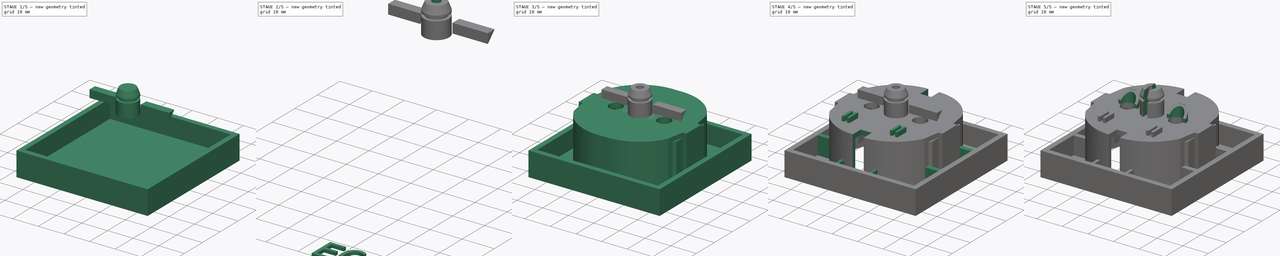
[diagram: build sequence overview — one tinted view per stage of 5, left to right]
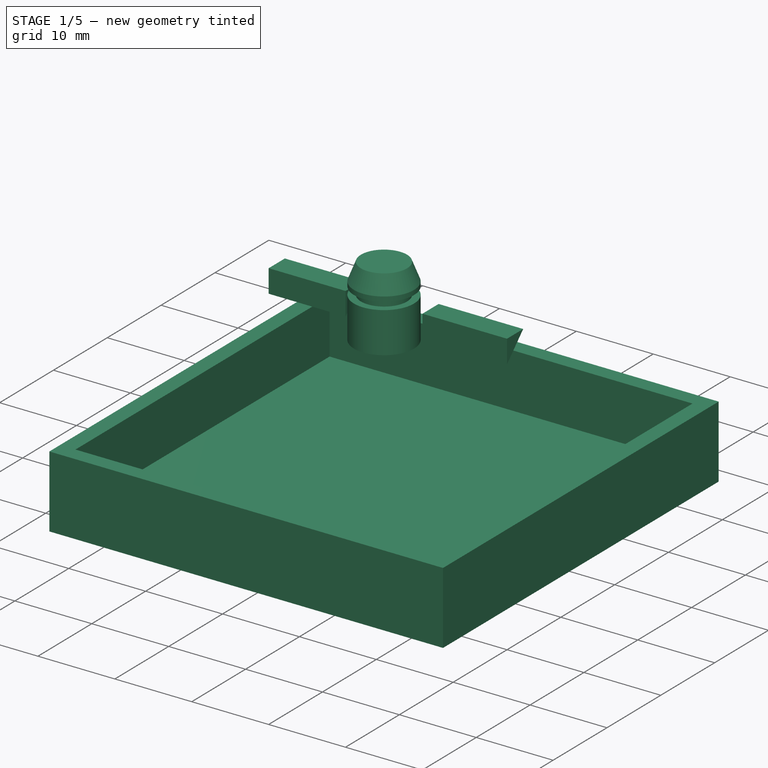
[diagram: stage 1 of 5 — iso view after this stage's code; geometry added in this stage tinted green]
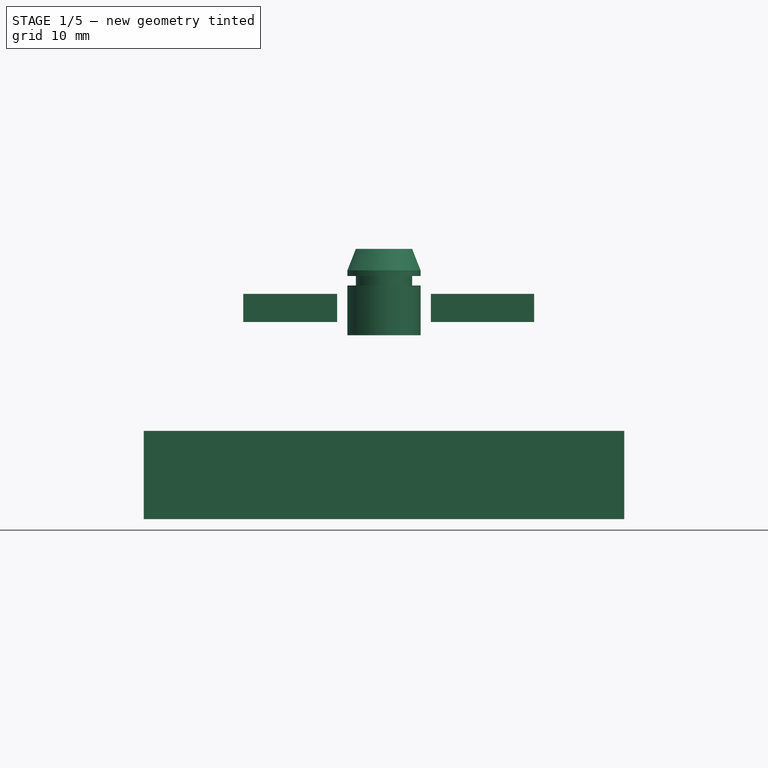
[diagram: stage 1 of 5 — front view after this stage's code; geometry added in this stage tinted green]
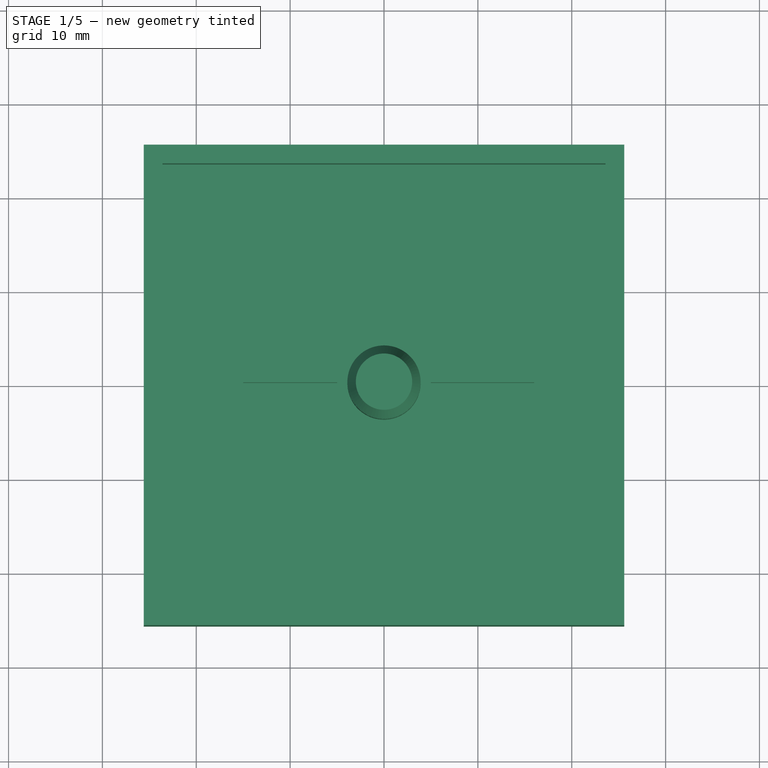
[diagram: stage 1 of 5 — top view after this stage's code; geometry added in this stage tinted green]
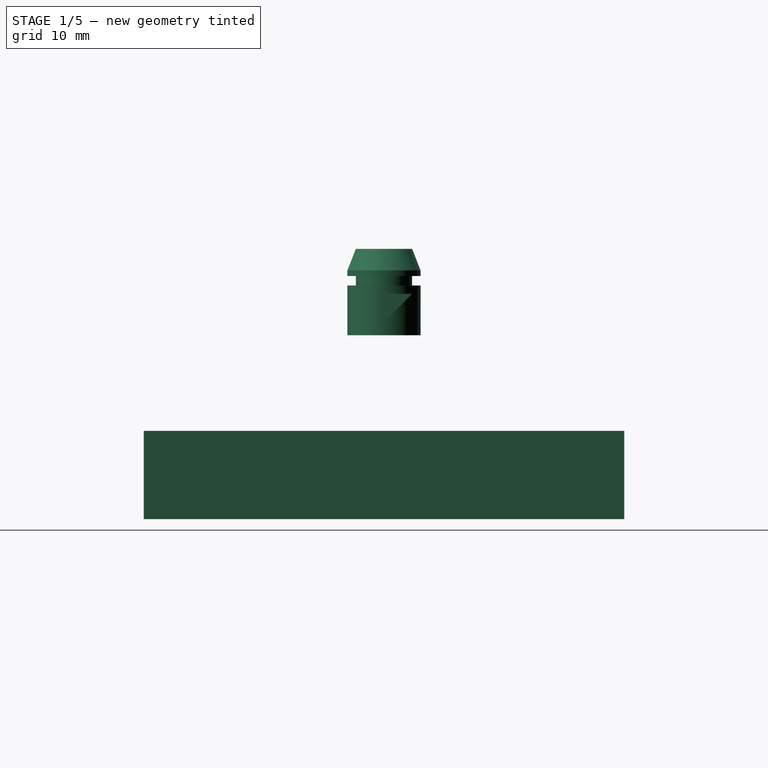
[diagram: stage 1 of 5 — right view after this stage's code; geometry added in this stage tinted green]
FCSTD DOCUMENT  (FreeCAD 0.16R6707 (Git))
Label: master2
License: All rights reserved
LicenseURL: http://en.wikipedia.org/wiki/All_rights_reserved
objects: Sketcher::SketchObject×17, PartDesign::Pad×8, PartDesign::Pocket×6, Part::Cut×4, Part::Feature×3, Part::Extrusion×3, Part::MultiFuse×2, Part::Revolution×1, PartDesign::Revolution×1
note: 60 computed .brp shape members not serialized (recipe doc carries the construction recipe); baked Part::Feature solids carry a one-line shape summary decoded from their .brp

FEATURE [Sketcher::SketchObject] Sketch002  label="boxFaceSkt"
  sketch-geometry (4):
    g0: LineSegment StartX=25.6 StartY=25.6 StartZ=0 EndX=-25.6 EndY=25.6 EndZ=0
    g1: LineSegment StartX=-25.6 StartY=25.6 StartZ=0 EndX=-25.6 EndY=-25.6 EndZ=0
    g2: LineSegment StartX=-25.6 StartY=-25.6 StartZ=0 EndX=25.6 EndY=-25.6 EndZ=0
    g3: LineSegment StartX=25.6 StartY=-25.6 StartZ=0 EndX=25.6 EndY=25.6 EndZ=0
  constraints (13):
    c: Horizontal(g0)
    c: Coincident(g0,g1)
    c: Vertical(g1)
    c: Coincident(g1,g2)
    c: Horizontal(g2)
    c: Coincident(g2,g3)
    c: Coincident(g3,g0)
    c: Vertical(g3)
    c: Equal(g3,g0)
    c: Equal(g0,g2)
    c: Symmetric(g0,g2,g-1)
    c: Symmetric(g0,g0,g-2)
    c: DistanceX(g0,g0) = 51.2  'side'
FEATURE [PartDesign::Pad] Pad001  label="faceboxPad"
  Length = 9.4
  Length2 = 100
  Sketch = -> Sketch002
  Type = 0
FEATURE [Sketcher::SketchObject] Sketch003  label="boxBackSkt"
  Placement = pos=(0,0,9.4) rot=(0,0,1;0rad)
  Support = -> Pad001 [Face6]
  expr: Constraints[11] = boxFaceSkt.Constraints.side - 2 * 2
  sketch-geometry (4):
    g0: LineSegment StartX=-23.6 StartY=23.6 StartZ=0 EndX=23.6 EndY=23.6 EndZ=0
    g1: LineSegment StartX=23.6 StartY=23.6 StartZ=0 EndX=23.6 EndY=-23.6 EndZ=0
    g2: LineSegment StartX=23.6 StartY=-23.6 StartZ=0 EndX=-23.6 EndY=-23.6 EndZ=0
    g3: LineSegment StartX=-23.6 StartY=-23.6 StartZ=0 EndX=-23.6 EndY=23.6 EndZ=0
  constraints (12):
    c: Coincident(g0,g1)
    c: Coincident(g1,g2)
    c: Coincident(g2,g3)
    c: Coincident(g3,g0)
    c: Horizontal(g0)
    c: Horizontal(g2)
    c: Vertical(g3)
    c: Vertical(g1)
    c: Equal(g0,g3)
    c: Symmetric(g0,g1,g-1)
    c: Symmetric(g2,g1,g-2)
    c: DistanceX(g0,g0) = 47.2
FEATURE [PartDesign::Pocket] Pocket
  Length = 7.1
  Sketch = -> Sketch003
  Type = 0
FEATURE [Sketcher::SketchObject] Sketch014  label="sktBackShaft"
  Placement = pos=(0,0,0) rot=(1,0,0;1.5708rad)
  sketch-geometry (9):
    g0: LineSegment StartX=0 StartY=19.5996 StartZ=0 EndX=-3.9 EndY=19.5996 EndZ=0
    g1: LineSegment StartX=-3.9 StartY=19.5996 StartZ=0 EndX=-3.9 EndY=24.8996 EndZ=0
    g2: LineSegment StartX=-3.9 StartY=24.8996 StartZ=0 EndX=-3 EndY=24.8996 EndZ=0
    g3: LineSegment StartX=-3 StartY=24.8996 StartZ=0 EndX=-3 EndY=25.8996 EndZ=0
    g4: LineSegment StartX=-3 StartY=25.8996 StartZ=0 EndX=-3.9 EndY=25.8996 EndZ=0
    g5: LineSegment StartX=-3.9 StartY=25.8996 StartZ=0 EndX=-3.9 EndY=26.4996 EndZ=0
    g6: LineSegment StartX=-3.9 StartY=26.4996 StartZ=0 EndX=-3 EndY=28.7996 EndZ=0
    g7: LineSegment StartX=-3 StartY=28.7996 StartZ=0 EndX=0 EndY=28.7996 EndZ=0
    g8: LineSegment StartX=0 StartY=28.7996 StartZ=0 EndX=0 EndY=19.5996 EndZ=0
  constraints (27):
    c: PointOnObject(g0,g-2)
    c: Horizontal(g0)
    c: Coincident(g0,g1)
    c: Vertical(g1)
    c: Coincident(g1,g2)
    c: Horizontal(g2)
    c: Coincident(g2,g3)
    c: Vertical(g3)
    c: Coincident(g3,g4)
    c: Coincident(g4,g5)
    c: Vertical(g5)
    c: Coincident(g5,g6)
    c: Coincident(g6,g7)
    c: Horizontal(g7)
    c: Coincident(g7,g8)
    c: Coincident(g8,g0)
    c: Vertical(g8)
    c: DistanceY(g0,g7) = 9.2
    c: DistanceY(g-1,g0) = 19.5996
    c: DistanceX(g0,g0) = 3.9
    c: Horizontal(g4)
    c: Equal(g2,g4)
    c: DistanceY(g2,g3) = 1
    c: DistanceX(g2,g0) = 3
    c: DistanceY(g4,g5) = 0.6
    c: DistanceY(g0,g1) = 5.3
    c: DistanceX(g6,g7) = 3
FEATURE [PartDesign::Revolution] Revolution
  Angle = 360
  Axis = (0,0,1)
  Base = (0,0,0)
  Placement = pos=(0,0,0) rot=(1,0,0;1.5708rad)
  ReferenceAxis = -> Sketch014 [V_Axis]
  Sketch = -> Sketch014
FEATURE [Sketcher::SketchObject] Sketch017  label="sktCutNozle"
  Placement = pos=(5,0,0) rot=(0.57735,0.57735,0.57735;2.0944rad)
  sketch-geometry (3):
    g0: LineSegment StartX=3 StartY=24 StartZ=0 EndX=0 EndY=21 EndZ=0
    g1: LineSegment StartX=0 StartY=21 StartZ=0 EndX=0 EndY=24 EndZ=0
    g2: LineSegment StartX=0 StartY=24 StartZ=0 EndX=3 EndY=24 EndZ=0
  constraints (7):
    c: PointOnObject(g0,g-2)
    c: Coincident(g0,g1)
    c: PointOnObject(g1,g-2)
    c: Coincident(g1,g2)
    c: Coincident(g0,g2)
    c: Horizontal(g2)
    c: Angle(g2,g0) = 0.785398
FEATURE [PartDesign::Pad] Pad006
  Length = 11
  Length2 = 100
  Placement = pos=(5,0,0) rot=(0.57735,0.57735,0.57735;2.0944rad)
  Sketch = -> Sketch017
  Type = 0
FEATURE [Sketcher::SketchObject] Sketch019  label="sktCutNozle001"
  Placement = pos=(-15,0,0) rot=(0.57735,0.57735,0.57735;2.0944rad)
  sketch-geometry (3):
    g0: LineSegment StartX=3 StartY=24 StartZ=0 EndX=0 EndY=21 EndZ=0
    g1: LineSegment StartX=0 StartY=21 StartZ=0 EndX=0 EndY=24 EndZ=0
    g2: LineSegment StartX=0 StartY=24 StartZ=0 EndX=3 EndY=24 EndZ=0
  constraints (7):
    c: PointOnObject(g0,g-2)
    c: Coincident(g0,g1)
    c: PointOnObject(g1,g-2)
    c: Coincident(g1,g2)
    c: Coincident(g0,g2)
    c: Horizontal(g2)
    c: Angle(g2,g0) = 0.785398
FEATURE [PartDesign::Pad] Pad007
  Length = 10
  Length2 = 100
  Placement = pos=(-15,0,0) rot=(0.57735,0.57735,0.57735;2.0944rad)
  Sketch = -> Sketch019
  Type = 0
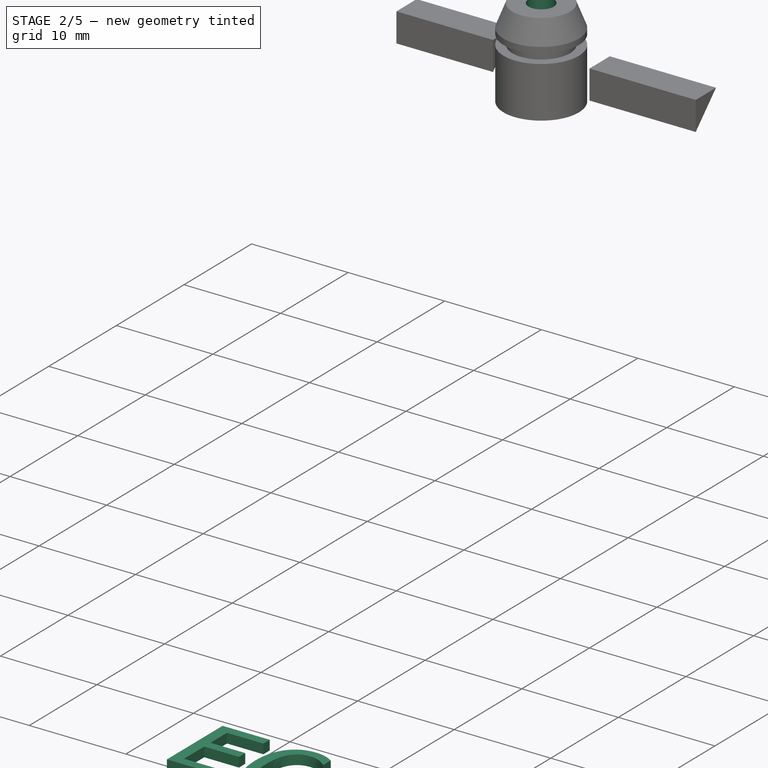
[diagram: stage 2 of 5 — iso view after this stage's code; geometry added in this stage tinted green]
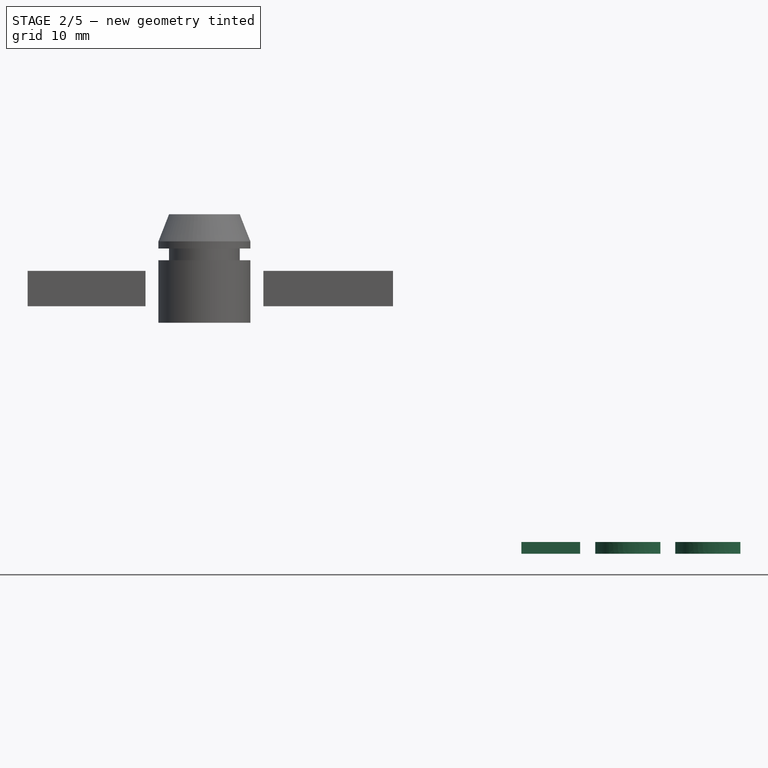
[diagram: stage 2 of 5 — front view after this stage's code; geometry added in this stage tinted green]
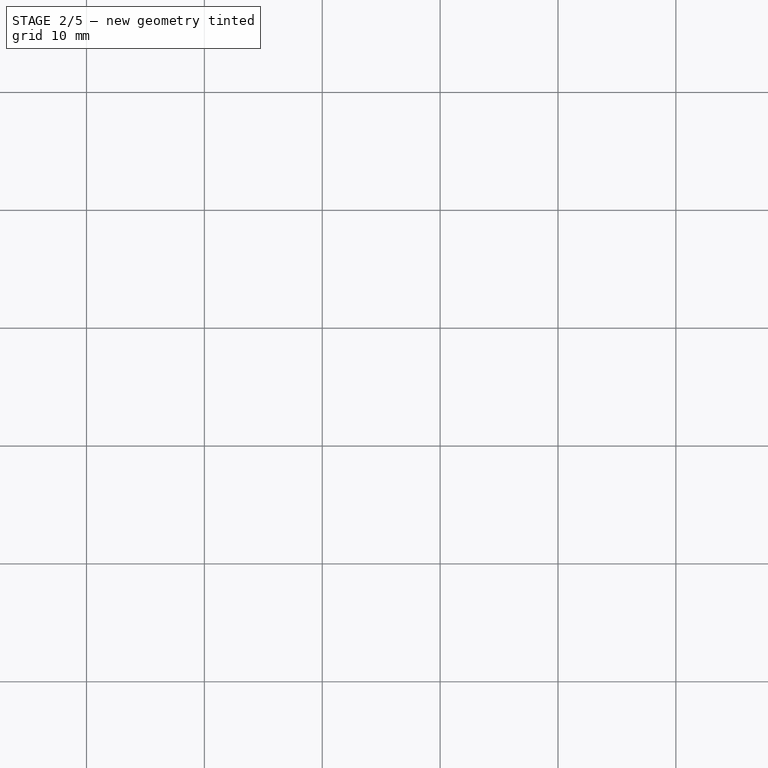
[diagram: stage 2 of 5 — top view after this stage's code; geometry added in this stage tinted green]
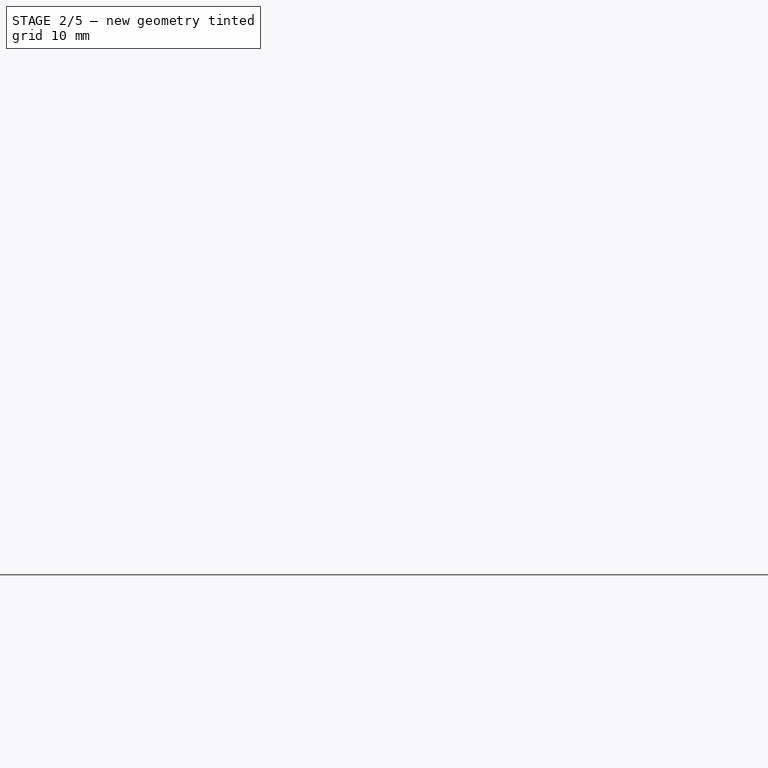
[diagram: stage 2 of 5 — right view after this stage's code; geometry added in this stage tinted green]
FEATURE [Sketcher::SketchObject] Sketch  label="mainOutTube"
  Placement = pos=(0,0,2.3) rot=(0,0,1;0rad)
  Support = -> Pocket [Face11]
  sketch-geometry (16):
    g0: ArcOfCircle CenterX=-1.77292 CenterY=2.67937 CenterZ=0 NormalX=0 NormalY=0 NormalZ=1 Radius=18.3745 StartAngle=1.59132 EndAngle=2.70194
    g1: LineSegment StartX=-19.5 StartY=4.15 StartZ=0 EndX=-21 EndY=4.15 EndZ=0
    g2: LineSegment StartX=-21 StartY=4.15 StartZ=0 EndX=-21 EndY=-4.15 EndZ=0
    g3: LineSegment StartX=-21 StartY=-4.15 StartZ=0 EndX=-19.5 EndY=-4.15 EndZ=0
    g4: ArcOfCircle CenterX=-1.77292 CenterY=-2.67937 CenterZ=0 NormalX=0 NormalY=0 NormalZ=1 Radius=18.3745 StartAngle=3.58124 EndAngle=4.69187
    g5: ArcOfCircle CenterX=1.77292 CenterY=-2.67937 CenterZ=0 NormalX=0 NormalY=0 NormalZ=1 Radius=18.3745 StartAngle=4.73291 EndAngle=5.84353
    g6: LineSegment StartX=19.5 StartY=-4.15 StartZ=0 EndX=21 EndY=-4.15 EndZ=0
    g7: LineSegment StartX=21 StartY=-4.15 StartZ=0 EndX=21 EndY=4.15 EndZ=0
    g8: LineSegment StartX=21 StartY=4.15 StartZ=0 EndX=19.5 EndY=4.15 EndZ=0
    g9: ArcOfCircle CenterX=1.77292 CenterY=2.67937 CenterZ=0 NormalX=0 NormalY=0 NormalZ=1 Radius=18.3745 StartAngle=0.439651 EndAngle=1.55027
    g10: LineSegment StartX=-2.15 StartY=21.05 StartZ=0 EndX=2.15 EndY=21.05 EndZ=0
    g11: LineSegment StartX=-2.15 StartY=-21.05 StartZ=0 EndX=2.15 EndY=-21.05 EndZ=0
    g12: LineSegment StartX=18.4 StartY=10.5 StartZ=0 EndX=19.5 EndY=4.15 EndZ=0
    g13: LineSegment StartX=19.5 StartY=-4.15 StartZ=0 EndX=18.4 EndY=-10.5 EndZ=0
    g14: LineSegment StartX=-19.5 StartY=4.15 StartZ=0 EndX=-18.4 EndY=10.5 EndZ=0
    g15: LineSegment StartX=-19.5 StartY=-4.15 StartZ=0 EndX=-18.4 EndY=-10.5 EndZ=0
  constraints (44):
    c: Horizontal(g1)
    c: Coincident(g1,g2)
    c: Vertical(g2)
    c: Coincident(g2,g3)
    c: Horizontal(g3)
    c: Horizontal(g6)
    c: Coincident(g6,g7)
    c: Vertical(g7)
    c: Coincident(g7,g8)
    c: Horizontal(g8)
    c: Equal(g2,g7)
    c: Equal(g1,g3)
    c: Equal(g3,g8)
    c: Equal(g8,g6)
    c: Symmetric(g3,g1,g-1)
    c: DistanceY(g2,g1) = 8.3
    c: DistanceY(g5,g9) = 21
    c: Symmetric(g9,g5,g-1)  'Constraint58'
    c: Symmetric(g3,g6,g-2)  'Constraint57'
    c: DistanceX(g3,g6) = 39  'width'
    c: Equal(g5,g4)  'Constraint59'
    c: Equal(g4,g0)  'Constraint51'
    c: Equal(g0,g9)  'Constraint49'
    c: Coincident(g10,g0)  'Constraint39'
    c: Coincident(g9,g10)  'Constraint37'
    c: Horizontal(g10)  'Constraint36'
    c: Horizontal(g11)  'Constraint35'
    c: Coincident(g5,g11)  'Constraint34'
    c: Coincident(g4,g11)  'Constraint33'
    c: Equal(g11,g10)  'Constraint32'
    c: Symmetric(g9,g0,g-2)  'Constraint31'
    c: Symmetric(g5,g4,g-2)
    c: DistanceX(g10,g10) = 4.3
    c: DistanceY(g5,g9) = 42.1
    c: Symmetric(g9,g5,g-1)
    c: DistanceX(g8,g8) = 1.5
    c: Coincident(g12,g9)
    c: Coincident(g12,g8)
    c: Coincident(g13,g6)
    c: Coincident(g13,g5)
    c: Coincident(g14,g1)
    c: Coincident(g14,g0)
    c: Coincident(g15,g3)
    c: Coincident(g15,g4)
FEATURE [PartDesign::Pad] Pad
  Length = 17.3
  Length2 = 100
  Sketch = -> Sketch
  Type = 0
FEATURE [Part::Feature] path3045  label="letterE"
  shape: bbox 4.988 x 8.23 x 2e-07 mm, 0 faces, 0 solids (baked)
FEATURE [Part::Feature] path3047  label="letterG1"
  shape: bbox 5.523 x 8.538 x 2e-07 mm, 0 faces, 0 solids (baked)
FEATURE [Part::Feature] path3049  label="letterG2"
  shape: bbox 5.523 x 8.538 x 2e-07 mm, 0 faces, 0 solids (baked)
FEATURE [Part::Extrusion] Extrude
  Base = -> path3045
  Dir = (0,0,1)
  Solid = true
FEATURE [Part::Extrusion] Extrude001
  Base = -> path3047
  Dir = (0,0,1)
  Solid = true
FEATURE [Part::Extrusion] Extrude002
  Base = -> path3049
  Dir = (0,0,1)
  Solid = true
FEATURE [Sketcher::SketchObject] Sketch013  label="sktCenterHole"
  Placement = pos=(0,0,19.5996) rot=(1,0,0;3.14159rad)
  Support = -> Revolution [Face1]
  expr: Constraints[1] = wireHoles.Constraints.centerHole
  sketch-geometry (1):
    g0: Circle CenterX=0 CenterY=0 CenterZ=0 NormalX=0 NormalY=0 NormalZ=1 Radius=1.3
  constraints (2):
    c: Coincident(g0,g-1)
    c: Radius(g0) = 1.3
FEATURE [PartDesign::Pocket] Pocket004
  Length = 5
  Placement = pos=(0,0,0) rot=(1,0,0;1.5708rad)
  Sketch = -> Sketch013
  Type = 1
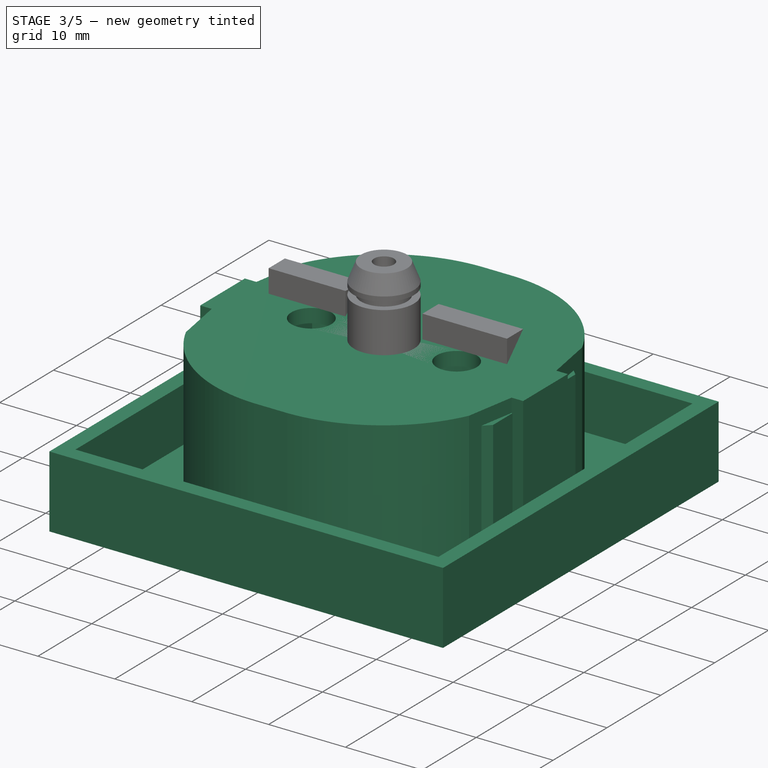
[diagram: stage 3 of 5 — iso view after this stage's code; geometry added in this stage tinted green]
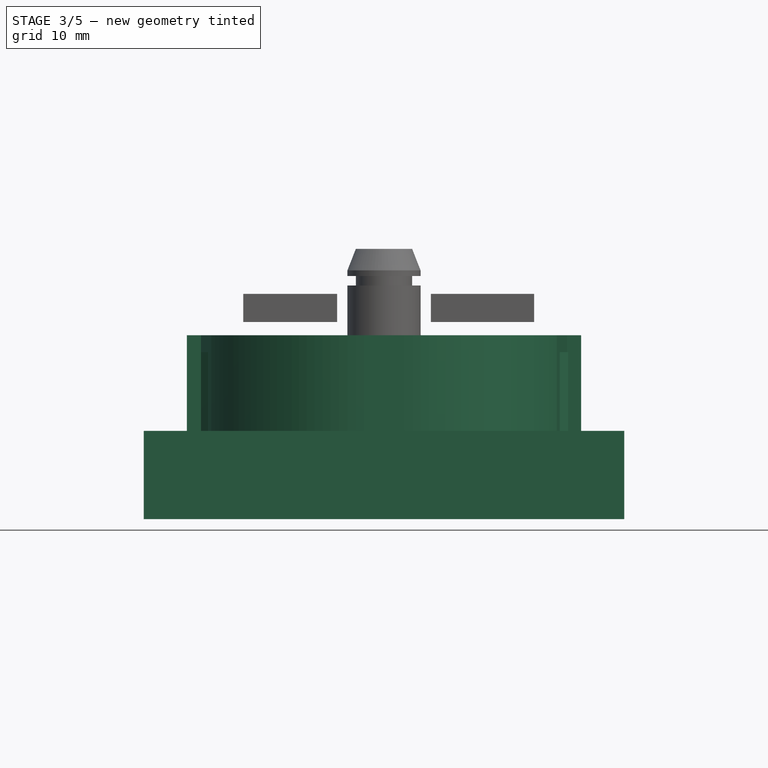
[diagram: stage 3 of 5 — front view after this stage's code; geometry added in this stage tinted green]
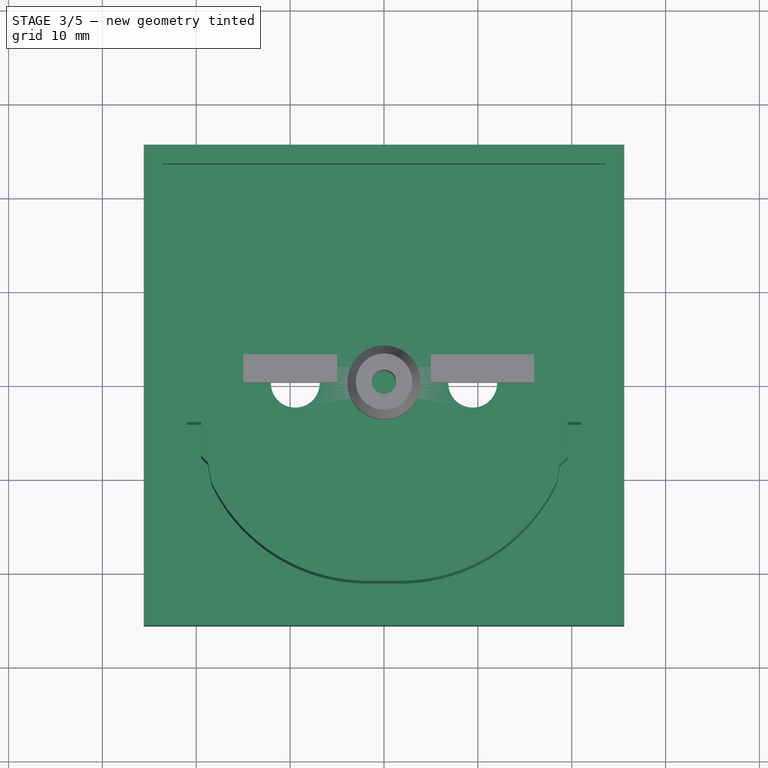
[diagram: stage 3 of 5 — top view after this stage's code; geometry added in this stage tinted green]
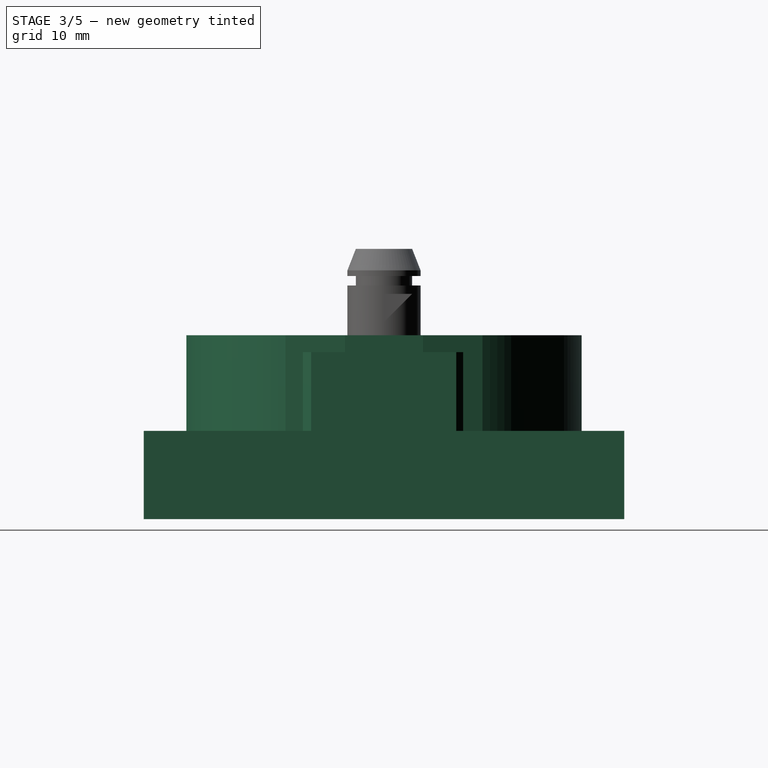
[diagram: stage 3 of 5 — right view after this stage's code; geometry added in this stage tinted green]
FEATURE [Sketcher::SketchObject] Sketch004  label="wireHoles"
  Placement = pos=(0,0,0) rot=(1,0,0;3.14159rad)
  Support = -> Pad [Face4]
  expr: Constraints.holeDistance = 13.7 + Constraints.wireRadius * 2
  sketch-geometry (3):
    g0: Circle CenterX=-9.45 CenterY=0 CenterZ=0 NormalX=0 NormalY=0 NormalZ=1 Radius=2.6
    g1: Circle CenterX=9.45 CenterY=0 CenterZ=0 NormalX=0 NormalY=0 NormalZ=1 Radius=2.6
    g2: Circle CenterX=0 CenterY=0 CenterZ=0 NormalX=0 NormalY=0 NormalZ=1 Radius=1.3
  constraints (8):
    c: PointOnObject(g0,g-1)
    c: Radius(g0) = 2.6  'wireRadius'
    c: PointOnObject(g1,g-1)
    c: Equal(g1,g0)
    c: Symmetric(g1,g0,g-2)
    c: DistanceX(g0,g1) = 18.9  'holeDistance'
    c: Coincident(g2,g-1)
    c: Radius(g2) = 1.3  'centerHole'
FEATURE [PartDesign::Pocket] Pocket001
  Length = 5
  Sketch = -> Sketch004
  Type = 1
FEATURE [Sketcher::SketchObject] Sketch001  label="mainInTube"
  Placement = pos=(0,0,0) rot=(1,0,0;3.14159rad)
  Support = -> Pocket001 [Face4]
  sketch-geometry (1):
    g0: Circle CenterX=0 CenterY=0 CenterZ=0 NormalX=0 NormalY=0 NormalZ=1 Radius=19.75
  constraints (2):
    c: Coincident(g0,g-1)
    c: Radius(g0) = 19.75  'innerRadius'
FEATURE [PartDesign::Pocket] Pocket002
  Length = 17.8
  Sketch = -> Sketch001
  Type = 0
FEATURE [Sketcher::SketchObject] Sketch006  label="mainInTubeRibs"
  Placement = pos=(0,0,17.8) rot=(1,0,0;3.14159rad)
  Support = -> Pocket002 [Face12]
  sketch-geometry (16):
    g0: LineSegment StartX=-16.7 StartY=10.5 StartZ=0 EndX=-16.7 EndY=2.7 EndZ=0
    g1: LineSegment StartX=-16.7 StartY=2.7 StartZ=0 EndX=-19.5 EndY=2.7 EndZ=0
    g2: LineSegment StartX=-19.5 StartY=-2.7 StartZ=0 EndX=-16.7 EndY=-2.7 EndZ=0
    g3: LineSegment StartX=-16.7 StartY=-2.7 StartZ=0 EndX=-16.7 EndY=-10.5 EndZ=0
    g4: LineSegment StartX=16.7 StartY=-10.4549 StartZ=0 EndX=16.7 EndY=-2.7 EndZ=0
    g5: LineSegment StartX=16.7 StartY=-2.7 StartZ=0 EndX=19.5 EndY=-2.7 EndZ=0
    g6: LineSegment StartX=19.6194 StartY=2.75818 StartZ=0 EndX=16.8194 EndY=2.75818 EndZ=0
    g7: LineSegment StartX=-19.5 StartY=-2.7 StartZ=0 EndX=-19.5 EndY=-7.7 EndZ=0
    g8: LineSegment StartX=-19.5 StartY=-7.7 StartZ=0 EndX=-16.7 EndY=-10.5 EndZ=0
    g9: LineSegment StartX=-19.5 StartY=2.7 StartZ=0 EndX=-19.5 EndY=7.7 EndZ=0
    g10: LineSegment StartX=-19.5 StartY=7.7 StartZ=0 EndX=-16.7 EndY=10.5 EndZ=0
    g11: LineSegment StartX=16.7 StartY=-10.4549 StartZ=0 EndX=19.5 EndY=-7.7 EndZ=0
    g12: LineSegment StartX=19.5 StartY=-7.7 StartZ=0 EndX=19.5 EndY=-2.7 EndZ=0
    g13: LineSegment StartX=16.8194 StartY=2.75818 StartZ=0 EndX=16.8194 EndY=10.5131 EndZ=0
    g14: LineSegment StartX=16.8194 StartY=10.5131 StartZ=0 EndX=19.6194 EndY=7.75818 EndZ=0
    g15: LineSegment StartX=19.6194 StartY=7.75818 StartZ=0 EndX=19.6194 EndY=2.75818 EndZ=0
  constraints (46):
    c: Vertical(g0)
    c: Coincident(g0,g1)
    c: Horizontal(g1)
    c: Horizontal(g2)
    c: Coincident(g2,g3)
    c: Vertical(g3)
    c: Vertical(g4)
    c: Coincident(g4,g5)
    c: Horizontal(g5)
    c: Horizontal(g6)
    c: Equal(g1,g2)
    c: Equal(g2,g6)
    c: Equal(g6,g5)
    c: Equal(g3,g0)
    c: Symmetric(g2,g0,g-1)
    c: DistanceY(g2,g1) = 5.4
    c: DistanceX(g6,g6) = 2.8
    c: Symmetric(g2,g4,g-2)  'Constraint57'
    c: DistanceX(g2,g4) = 33.4  'tubeWidth'
    c: PointOnObject(g7,g2)  'Constraint26'
    c: Coincident(g7,g8)
    c: Coincident(g3,g8)
    c: Vertical(g7)  'Constraint23'
    c: Coincident(g2,g7)
    c: DistanceY(g7,g7) = 5
    c: PointOnObject(g9,g1)
    c: Vertical(g9)
    c: Coincident(g9,g10)
    c: PointOnObject(g11,g4)
    c: Coincident(g11,g12)
    c: PointOnObject(g13,g6)
    c: Vertical(g13)
    c: Coincident(g13,g14)
    c: Coincident(g14,g15)
    c: Coincident(g6,g15)
    c: Coincident(g6,g13)
    c: Coincident(g5,g12)
    c: Coincident(g4,g11)
    c: Vertical(g12)
    c: Vertical(g15)
    c: Coincident(g0,g10)
    c: Coincident(g1,g9)
    c: Equal(g4,g13)
    c: Equal(g9,g15)
    c: Equal(g15,g12)
    c: Equal(g12,g7)
FEATURE [PartDesign::Pad] Pad002  label="padRim"
  Length = 14.6
  Length2 = 100
  Sketch = -> Sketch006
  Type = 0
FEATURE [Sketcher::SketchObject] Sketch009  label="sktCenterCone"
  expr: Constraints.radius = 3
  sketch-geometry (1):
    g0: Circle CenterX=0 CenterY=0 CenterZ=0 NormalX=0 NormalY=0 NormalZ=1 Radius=3
  constraints (2):
    c: Coincident(g0,g-1)
    c: Radius(g0) = 3  'radius'
FEATURE [Sketcher::SketchObject] Sketch010  label="sktCenterConeProfile"
  Placement = pos=(0,0,0) rot=(1,0,0;1.5708rad)
  expr: Constraints[7] = sktCenterCone.Constraints.radius
  expr: Constraints[11] = wireHoles.Constraints.centerHole
  expr: Constraints[8] = Pocket002.Length
  sketch-geometry (4):
    g0: LineSegment StartX=0 StartY=17.8 StartZ=0 EndX=3 EndY=17.8 EndZ=0
    g1: LineSegment StartX=3 StartY=17.8 StartZ=0 EndX=1.3 EndY=18.8 EndZ=0
    g2: LineSegment StartX=1.3 StartY=18.8 StartZ=0 EndX=0 EndY=18.8 EndZ=0
    g3: LineSegment StartX=0 StartY=18.8 StartZ=0 EndX=0 EndY=17.8 EndZ=0
  constraints (12):
    c: Horizontal(g0)
    c: Coincident(g0,g1)
    c: Coincident(g1,g2)
    c: Horizontal(g2)
    c: Coincident(g2,g3)
    c: Coincident(g0,g3)
    c: DistanceY(g0,g2) = 1
    c: DistanceX(g0,g0) = 3
    c: DistanceY(g-1,g0) = 17.8
    c: PointOnObject(g2,g-2)
    c: Vertical(g3)
    c: DistanceX(g2,g1) = 1.3
FEATURE [Part::Revolution] Revolve
  Angle = 360
  Axis = (0,0,1)
  Base = (0,0,0)
  Solid = true
  Source = -> Sketch010
FEATURE [Part::MultiFuse] Fusion
  Placement = pos=(-36,-99,18.5) rot=(1,0,0;3.14159rad)
  Shapes = -> [Extrude,Extrude002,Extrude001]
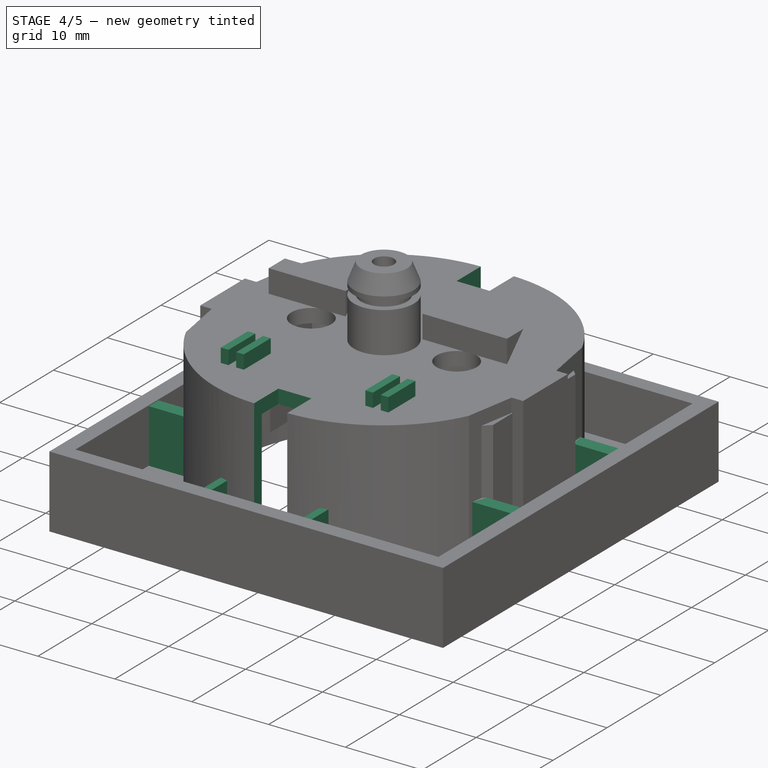
[diagram: stage 4 of 5 — iso view after this stage's code; geometry added in this stage tinted green]
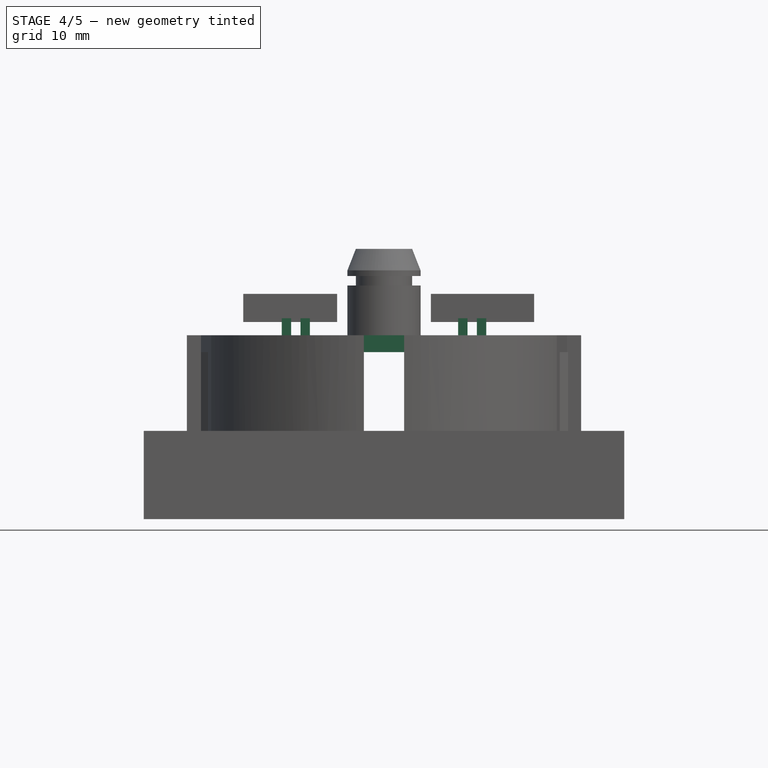
[diagram: stage 4 of 5 — front view after this stage's code; geometry added in this stage tinted green]
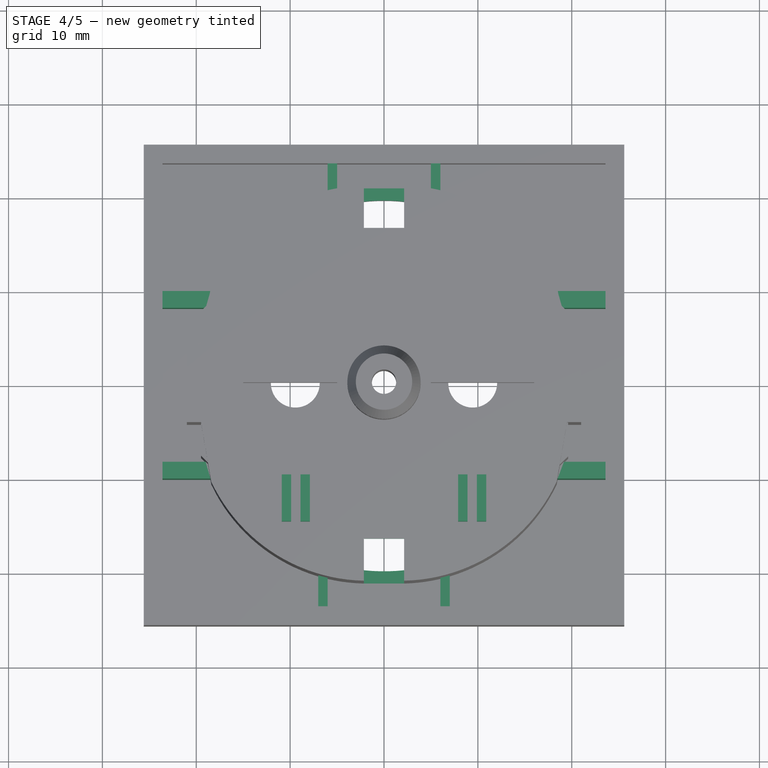
[diagram: stage 4 of 5 — top view after this stage's code; geometry added in this stage tinted green]
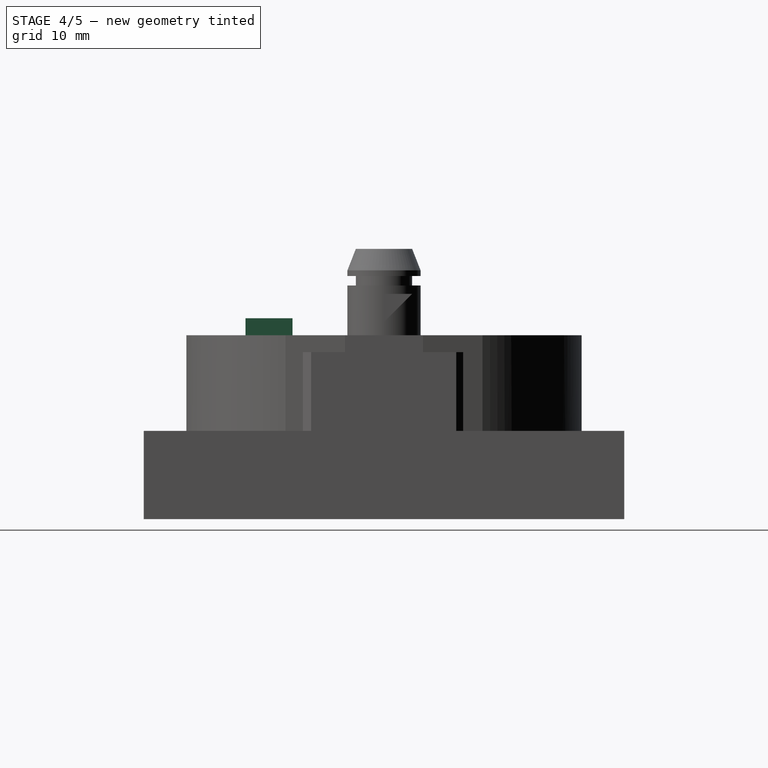
[diagram: stage 4 of 5 — right view after this stage's code; geometry added in this stage tinted green]
FEATURE [Sketcher::SketchObject] Sketch007
  Placement = pos=(0,0,19.6) rot=(0,0,1;0rad)
  Support = -> Pad002 [Face51]
  sketch-geometry (8):
    g0: LineSegment StartX=-2.15 StartY=22.55 StartZ=0 EndX=2.15 EndY=22.55 EndZ=0
    g1: LineSegment StartX=2.15 StartY=22.55 StartZ=0 EndX=2.15 EndY=16.55 EndZ=0
    g2: LineSegment StartX=2.15 StartY=16.55 StartZ=0 EndX=-2.15 EndY=16.55 EndZ=0
    g3: LineSegment StartX=-2.15 StartY=16.55 StartZ=0 EndX=-2.15 EndY=22.55 EndZ=0
    g4: LineSegment StartX=-2.15 StartY=-16.55 StartZ=0 EndX=2.15 EndY=-16.55 EndZ=0
    g5: LineSegment StartX=2.15 StartY=-16.55 StartZ=0 EndX=2.15 EndY=-22.55 EndZ=0
    g6: LineSegment StartX=2.15 StartY=-22.55 StartZ=0 EndX=-2.15 EndY=-22.55 EndZ=0
    g7: LineSegment StartX=-2.15 StartY=-22.55 StartZ=0 EndX=-2.15 EndY=-16.55 EndZ=0
  constraints (23):
    c: Coincident(g0,g1)
    c: Coincident(g1,g2)
    c: Coincident(g2,g3)
    c: Coincident(g3,g0)
    c: Horizontal(g0)
    c: Horizontal(g2)
    c: Vertical(g1)
    c: Vertical(g3)
    c: DistanceX(g2,g2) = 4.3  'width'
    c: Symmetric(g1,g2,g-2)
    c: Coincident(g4,g5)
    c: Coincident(g5,g6)
    c: Coincident(g6,g7)
    c: Coincident(g7,g4)
    c: Horizontal(g4)
    c: Horizontal(g6)
    c: Vertical(g5)
    c: Vertical(g7)
    c: Symmetric(g4,g4,g-2)
    c: Symmetric(g4,g1,g-1)
    c: DistanceY(g4,g2) = 33.1  'distance'
    c: Equal(g7,g3)
    c: DistanceY(g1,g1) = 6
FEATURE [PartDesign::Pocket] Pocket003
  Length = 17.29
  Sketch = -> Sketch007
  Type = 0
FEATURE [Sketcher::SketchObject] Sketch008  label="sktForceEdge"
  Placement = pos=(0,0,2.3) rot=(0,0,1;0rad)
  Support = -> Pocket003 [Face31]
  sketch-geometry (32):
    g0: LineSegment StartX=-24 StartY=10 StartZ=0 EndX=-18 EndY=10 EndZ=0
    g1: LineSegment StartX=-18 StartY=10 StartZ=0 EndX=-18 EndY=8.2 EndZ=0
    g2: LineSegment StartX=-18 StartY=8.2 StartZ=0 EndX=-24 EndY=8.2 EndZ=0
    g3: LineSegment StartX=-24 StartY=8.2 StartZ=0 EndX=-24 EndY=10 EndZ=0
    g4: LineSegment StartX=-24 StartY=-8.2 StartZ=0 EndX=-18 EndY=-8.2 EndZ=0
    g5: LineSegment StartX=-18 StartY=-8.2 StartZ=0 EndX=-18 EndY=-10 EndZ=0
    g6: LineSegment StartX=-18 StartY=-10 StartZ=0 EndX=-24 EndY=-10 EndZ=0
    g7: LineSegment StartX=-24 StartY=-10 StartZ=0 EndX=-24 EndY=-8.2 EndZ=0
    g8: LineSegment StartX=18 StartY=10 StartZ=0 EndX=24 EndY=10 EndZ=0
    g9: LineSegment StartX=24 StartY=10 StartZ=0 EndX=24 EndY=8.2 EndZ=0
    g10: LineSegment StartX=24 StartY=8.2 StartZ=0 EndX=18 EndY=8.2 EndZ=0
    g11: LineSegment StartX=18 StartY=8.2 StartZ=0 EndX=18 EndY=10 EndZ=0
    g12: LineSegment StartX=18 StartY=-8.2 StartZ=0 EndX=24 EndY=-8.2 EndZ=0
    g13: LineSegment StartX=24 StartY=-8.2 StartZ=0 EndX=24 EndY=-10 EndZ=0
    g14: LineSegment StartX=24 StartY=-10 StartZ=0 EndX=18 EndY=-10 EndZ=0
    g15: LineSegment StartX=18 StartY=-10 StartZ=0 EndX=18 EndY=-8.2 EndZ=0
    g16: LineSegment StartX=-6 StartY=25 StartZ=0 EndX=-5 EndY=25 EndZ=0
    g17: LineSegment StartX=-5 StartY=25 StartZ=0 EndX=-5 EndY=20 EndZ=0
    g18: LineSegment StartX=-5 StartY=20 StartZ=0 EndX=-6 EndY=20 EndZ=0
    g19: LineSegment StartX=-6 StartY=20 StartZ=0 EndX=-6 EndY=25 EndZ=0
    g20: LineSegment StartX=5 StartY=25 StartZ=0 EndX=6 EndY=25 EndZ=0
    g21: LineSegment StartX=6 StartY=25 StartZ=0 EndX=6 EndY=20 EndZ=0
    g22: LineSegment StartX=6 StartY=20 StartZ=0 EndX=5 EndY=20 EndZ=0
    g23: LineSegment StartX=5 StartY=20 StartZ=0 EndX=5 EndY=25 EndZ=0
    g24: LineSegment StartX=6 StartY=-25 StartZ=0 EndX=7 EndY=-25 EndZ=0
    g25: LineSegment StartX=7 StartY=-25 StartZ=0 EndX=7 EndY=-20 EndZ=0
    g26: LineSegment StartX=7 StartY=-20 StartZ=0 EndX=6 EndY=-20 EndZ=0
    g27: LineSegment StartX=6 StartY=-20 StartZ=0 EndX=6 EndY=-25 EndZ=0
    g28: LineSegment StartX=-7 StartY=-20 StartZ=0 EndX=-6 EndY=-20 EndZ=0
    g29: LineSegment StartX=-6 StartY=-20 StartZ=0 EndX=-6 EndY=-25 EndZ=0
    g30: LineSegment StartX=-6 StartY=-25 StartZ=0 EndX=-7 EndY=-25 EndZ=0
    g31: LineSegment StartX=-7 StartY=-25 StartZ=0 EndX=-7 EndY=-20 EndZ=0
  constraints (90):
    c: Coincident(g0,g1)
    c: Coincident(g1,g2)
    c: Coincident(g2,g3)
    c: Coincident(g3,g0)
    c: Horizontal(g0)
    c: Horizontal(g2)
    c: Vertical(g1)
    c: Vertical(g3)
    c: DistanceX(g0,g0) = 6
    c: DistanceY(g1,g1) = 1.8
    c: DistanceX(g0,g-1) = 18
    c: DistanceY(g-1,g0) = 10
    c: Coincident(g4,g5)
    c: Coincident(g5,g6)
    c: Coincident(g6,g7)
    c: Coincident(g7,g4)
    c: Horizontal(g4)
    c: Horizontal(g6)
    c: Vertical(g5)
    c: Vertical(g7)
    c: Coincident(g8,g9)
    c: Coincident(g9,g10)
    c: Coincident(g10,g11)
    c: Coincident(g11,g8)
    c: Horizontal(g8)
    c: Horizontal(g10)
    c: Vertical(g9)
    c: Vertical(g11)
    c: Coincident(g12,g13)
    c: Coincident(g13,g14)
    c: Coincident(g14,g15)
    c: Coincident(g15,g12)
    c: Horizontal(g12)
    c: Horizontal(g14)
    c: Vertical(g13)
    c: Vertical(g15)
    c: Equal(g4,g2)
    c: Equal(g2,g10)
    c: Equal(g10,g12)
    c: Equal(g9,g13)
    c: Equal(g13,g3)
    c: Equal(g3,g7)
    c: Symmetric(g4,g2,g-1)
    c: Symmetric(g4,g12,g-2)
    c: Symmetric(g12,g10,g-1)
    c: Coincident(g16,g17)
    c: Coincident(g17,g18)
    c: Coincident(g18,g19)
    c: Coincident(g19,g16)
    c: Horizontal(g16)
    c: Horizontal(g18)
    c: Vertical(g17)
    c: Vertical(g19)
    c: DistanceX(g16,g16) = 1
    c: DistanceY(g17,g17) = 5
    c: DistanceX(g17,g-1) = 5
    c: DistanceY(g-1,g17) = 20
    c: Coincident(g20,g21)
    c: Coincident(g21,g22)
    c: Coincident(g22,g23)
    c: Coincident(g23,g20)
    c: Horizontal(g20)
    c: Horizontal(g22)
    c: Vertical(g21)
    c: Vertical(g23)
    c: Coincident(g24,g25)
    c: Coincident(g25,g26)
    c: Coincident(g26,g27)
    c: Coincident(g27,g24)
    c: Horizontal(g24)
    c: Horizontal(g26)
    c: Vertical(g25)
    c: Vertical(g27)
    c: Symmetric(g22,g17,g-2)
    c: Equal(g23,g17)
    c: Equal(g16,g20)
    c: Equal(g25,g21)
    c: Symmetric(g26,g21,g-1)
    c: Equal(g24,g22)
    c: Coincident(g28,g29)
    c: Coincident(g29,g30)
    c: Coincident(g30,g31)
    c: Coincident(g31,g28)
    c: Horizontal(g28)
    c: Horizontal(g30)
    c: Vertical(g29)
    c: Vertical(g31)
    c: Symmetric(g28,g26,g-2)
    c: Equal(g26,g28)
    c: Equal(g29,g27)
FEATURE [PartDesign::Pad] Pad003  label="padEdgeForce"
  Length = 7
  Length2 = 100
  Sketch = -> Sketch008
  Type = 0
FEATURE [Part::Cut] Cut  label="CenterConedPad"
  Base = -> Pad003
  Tool = -> Revolve
FEATURE [Part::Cut] Cut001  label="labled"
  Base = -> Cut
  Tool = -> Fusion
FEATURE [Sketcher::SketchObject] Sketch011  label="sktBackBar"
  Placement = pos=(0,0,19.6) rot=(0,0,1;0rad)
  Support = -> Cut001 [Face130]
  expr: Constraints[33] = Sketch007.Constraints.distance / 2 - 1.8
  sketch-geometry (16):
    g0: LineSegment StartX=-10.9 StartY=-9.75 StartZ=0 EndX=-9.9 EndY=-9.75 EndZ=0
    g1: LineSegment StartX=-9.9 StartY=-9.75 StartZ=0 EndX=-9.9 EndY=-14.75 EndZ=0
    g2: LineSegment StartX=-9.9 StartY=-14.75 StartZ=0 EndX=-10.9 EndY=-14.75 EndZ=0
    g3: LineSegment StartX=-10.9 StartY=-14.75 StartZ=0 EndX=-10.9 EndY=-9.75 EndZ=0
    g4: LineSegment StartX=-8.9 StartY=-9.75 StartZ=0 EndX=-7.9 EndY=-9.75 EndZ=0
    g5: LineSegment StartX=-7.9 StartY=-9.75 StartZ=0 EndX=-7.9 EndY=-14.75 EndZ=0
    g6: LineSegment StartX=-7.9 StartY=-14.75 StartZ=0 EndX=-8.9 EndY=-14.75 EndZ=0
    g7: LineSegment StartX=-8.9 StartY=-14.75 StartZ=0 EndX=-8.9 EndY=-9.75 EndZ=0
    g8: LineSegment StartX=7.9 StartY=-9.75 StartZ=0 EndX=8.9 EndY=-9.75 EndZ=0
    g9: LineSegment StartX=8.9 StartY=-9.75 StartZ=0 EndX=8.9 EndY=-14.75 EndZ=0
    g10: LineSegment StartX=8.9 StartY=-14.75 StartZ=0 EndX=7.9 EndY=-14.75 EndZ=0
    g11: LineSegment StartX=7.9 StartY=-14.75 StartZ=0 EndX=7.9 EndY=-9.75 EndZ=0
    g12: LineSegment StartX=10.9 StartY=-9.75 StartZ=0 EndX=9.9 EndY=-9.75 EndZ=0
    g13: LineSegment StartX=9.9 StartY=-9.75 StartZ=0 EndX=9.9 EndY=-14.75 EndZ=0
    g14: LineSegment StartX=9.9 StartY=-14.75 StartZ=0 EndX=10.9 EndY=-14.75 EndZ=0
    g15: LineSegment StartX=10.9 StartY=-14.75 StartZ=0 EndX=10.9 EndY=-9.75 EndZ=0
  constraints (46):
    c: Coincident(g0,g1)
    c: Coincident(g1,g2)
    c: Coincident(g2,g3)
    c: Coincident(g3,g0)
    c: Horizontal(g0)
    c: Horizontal(g2)
    c: Vertical(g1)
    c: Vertical(g3)
    c: Coincident(g4,g5)
    c: Coincident(g5,g6)
    c: Coincident(g6,g7)
    c: Coincident(g7,g4)
    c: Horizontal(g4)
    c: Horizontal(g6)
    c: Vertical(g5)
    c: Vertical(g7)
    c: Coincident(g8,g9)
    c: Coincident(g9,g10)
    c: Coincident(g10,g11)
    c: Coincident(g11,g8)
    c: Horizontal(g8)
    c: Horizontal(g10)
    c: Vertical(g9)
    c: Vertical(g11)
    c: Coincident(g12,g13)
    c: Coincident(g13,g14)
    c: Coincident(g14,g15)
    c: Coincident(g15,g12)
    c: Horizontal(g12)
    c: Horizontal(g14)
    c: Vertical(g13)
    c: Vertical(g15)
    c: DistanceY(g3,g3) = 5
    c: DistanceY(g6,g-1) = 14.75
    c: DistanceX(g0,g0) = 1
    c: Equal(g1,g7)
    c: Equal(g7,g11)
    c: Equal(g11,g13)
    c: DistanceY(g1,g-1) = 14.75
    c: Symmetric(g0,g12,g-2)
    c: DistanceX(g0,g4) = 1
    c: DistanceX(g8,g12) = 1
    c: DistanceX(g4,g4) = 1
    c: DistanceX(g8,g8) = 1
    c: DistanceX(g12,g12) = 1
    c: DistanceX(g4,g8) = 15.8
FEATURE [PartDesign::Pad] Pad004
  Length = 1.8
  Length2 = 100
  Sketch = -> Sketch011
  Type = 0
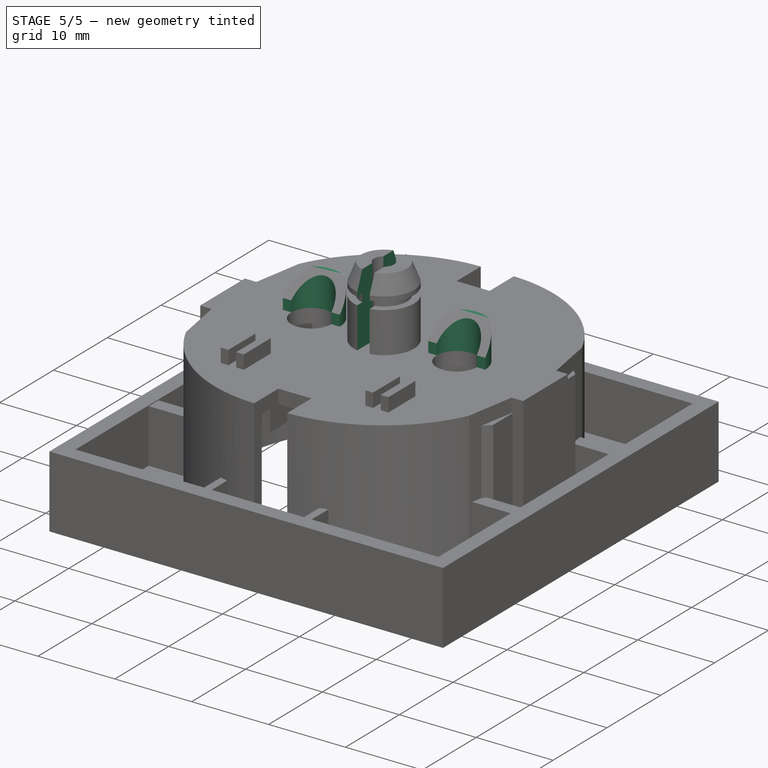
[diagram: stage 5 of 5 — iso view after this stage's code; geometry added in this stage tinted green]
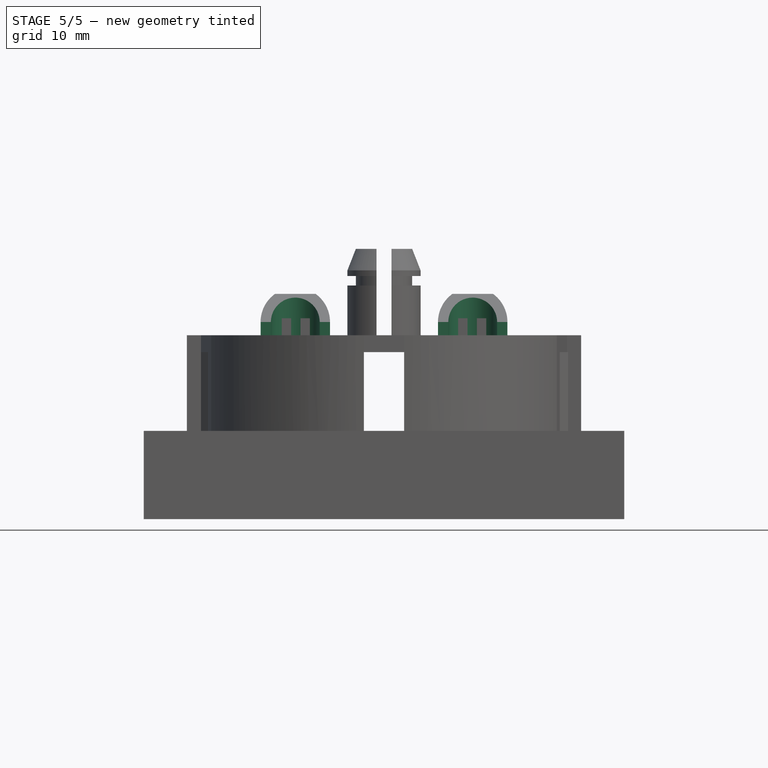
[diagram: stage 5 of 5 — front view after this stage's code; geometry added in this stage tinted green]
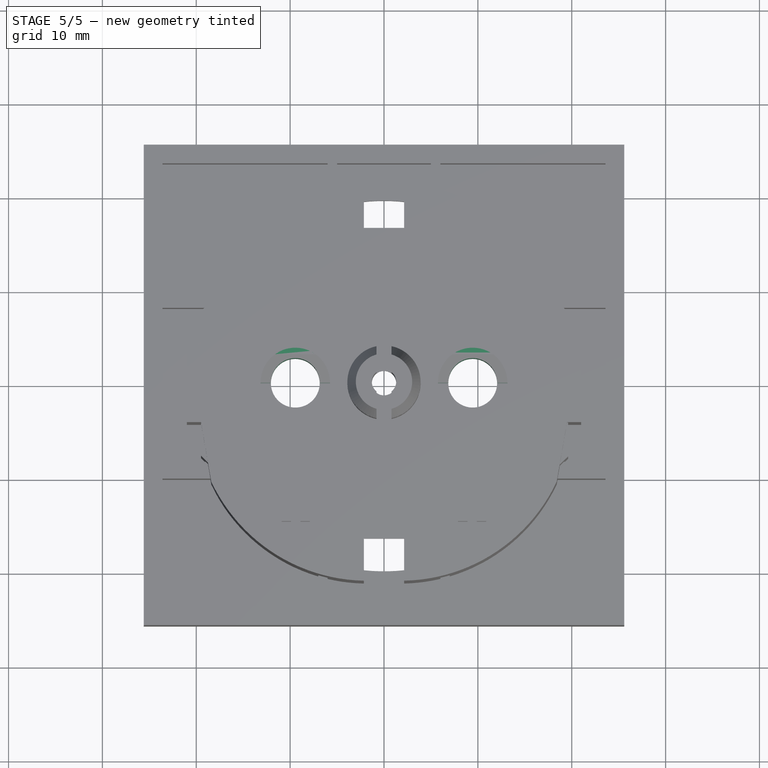
[diagram: stage 5 of 5 — top view after this stage's code; geometry added in this stage tinted green]
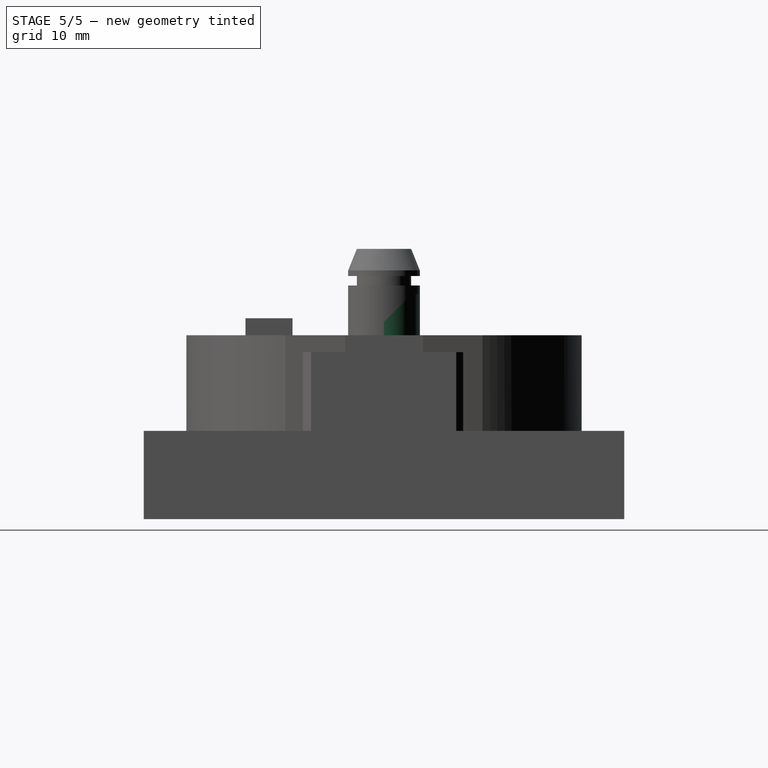
[diagram: stage 5 of 5 — right view after this stage's code; geometry added in this stage tinted green]
FEATURE [Part::MultiFuse] Fusion001  label="andShaft"
  Shapes = -> [Pocket004,Pad004]
FEATURE [Sketcher::SketchObject] Sketch015  label="sktShaftSlot"
  Placement = pos=(0,0,19.6) rot=(0,0,1;0rad)
  Support = -> Fusion001 [Face4]
  sketch-geometry (4):
    g0: LineSegment StartX=-0.8 StartY=4.29018 StartZ=0 EndX=0.8 EndY=4.29018 EndZ=0
    g1: LineSegment StartX=0.8 StartY=4.29018 StartZ=0 EndX=0.8 EndY=-4.45517 EndZ=0
    g2: LineSegment StartX=0.8 StartY=-4.45517 StartZ=0 EndX=-0.8 EndY=-4.45517 EndZ=0
    g3: LineSegment StartX=-0.8 StartY=-4.45517 StartZ=0 EndX=-0.8 EndY=4.29018 EndZ=0
  constraints (10):
    c: Coincident(g0,g1)
    c: Coincident(g1,g2)
    c: Coincident(g2,g3)
    c: Coincident(g3,g0)
    c: Horizontal(g0)
    c: Horizontal(g2)
    c: Vertical(g1)
    c: Vertical(g3)
    c: DistanceX(g0,g0) = 1.6
    c: Symmetric(g0,g0,g-2)
FEATURE [PartDesign::Pocket] Pocket005  label="potSlot"
  Length = 5
  Reversed = true
  Sketch = -> Sketch015
  Type = 1
FEATURE [Sketcher::SketchObject] Sketch016  label="sktNozle"
  Placement = pos=(0,0,19.6) rot=(0,0,1;0rad)
  Support = -> Pocket005 [Face8]
  expr: Constraints[23] = wireHoles.Constraints.holeDistance
  expr: Constraints[12] = wireHoles.Constraints.wireRadius
  expr: Constraints[21] = Constraints.outRadius
  expr: Constraints[20] = wireHoles.Constraints.wireRadius
  sketch-geometry (8):
    g0: ArcOfCircle CenterX=-9.45 CenterY=0 CenterZ=0 NormalX=0 NormalY=0 NormalZ=1 Radius=3.7 StartAngle=0 EndAngle=3.14159
    g1: LineSegment StartX=-13.15 StartY=-1e-12 StartZ=0 EndX=-12.05 EndY=-1e-12 EndZ=0
    g2: ArcOfCircle CenterX=-9.45 CenterY=0 CenterZ=0 NormalX=0 NormalY=0 NormalZ=1 Radius=2.6 StartAngle=0 EndAngle=3.14159
    g3: LineSegment StartX=-6.85 StartY=0 StartZ=0 EndX=-5.75 EndY=0 EndZ=0
    g4: LineSegment StartX=6.85 StartY=-1e-12 StartZ=0 EndX=5.75 EndY=-1e-12 EndZ=0
    g5: ArcOfCircle CenterX=9.45 CenterY=0 CenterZ=0 NormalX=0 NormalY=0 NormalZ=1 Radius=3.7 StartAngle=0 EndAngle=3.14159
    g6: LineSegment StartX=13.15 StartY=0 StartZ=0 EndX=12.05 EndY=0 EndZ=0
    g7: ArcOfCircle CenterX=9.45 CenterY=0 CenterZ=0 NormalX=0 NormalY=0 NormalZ=1 Radius=2.6 StartAngle=0 EndAngle=3.14159
  constraints (25):
    c: PointOnObject(g0,g-1)
    c: PointOnObject(g0,g-1)
    c: Coincident(g0,g1)
    c: Horizontal(g1)
    c: Perpendicular(g1,g2) = 4.71239
    c: PointOnObject(g2,g-1)
    c: Coincident(g2,g3)
    c: Coincident(g3,g0)
    c: Horizontal(g3)
    c: Equal(g1,g3)
    c: Radius(g0) = 3.7  'outRadius'
    c: Coincident(g0,g2)  'Constraint12'
    c: Radius(g2) = 2.6
    c: PointOnObject(g4,g-1)
    c: PointOnObject(g4,g-1)
    c: Perpendicular(g4,g5) = 1.5708
    c: Coincident(g5,g6)
    c: Perpendicular(g6,g7) = 4.71239
    c: Coincident(g7,g4)
    c: Equal(g6,g4)
    c: Radius(g7) = 2.6
    c: Radius(g5) = 3.7
    c: Symmetric(g5,g0,g-2)
    c: DistanceX(g0,g5) = 18.9
    c: Coincident(g1,g2)
FEATURE [PartDesign::Pad] Pad005  label="padNozled"
  Length = 4.4
  Length2 = 100
  Sketch = -> Sketch016
  Type = 0
FEATURE [Part::Cut] Cut002
  Base = -> Pad005
  Tool = -> Pad006
FEATURE [Part::Cut] Cut003  label="cuttedNozles"
  Base = -> Cut002
  Tool = -> Pad007
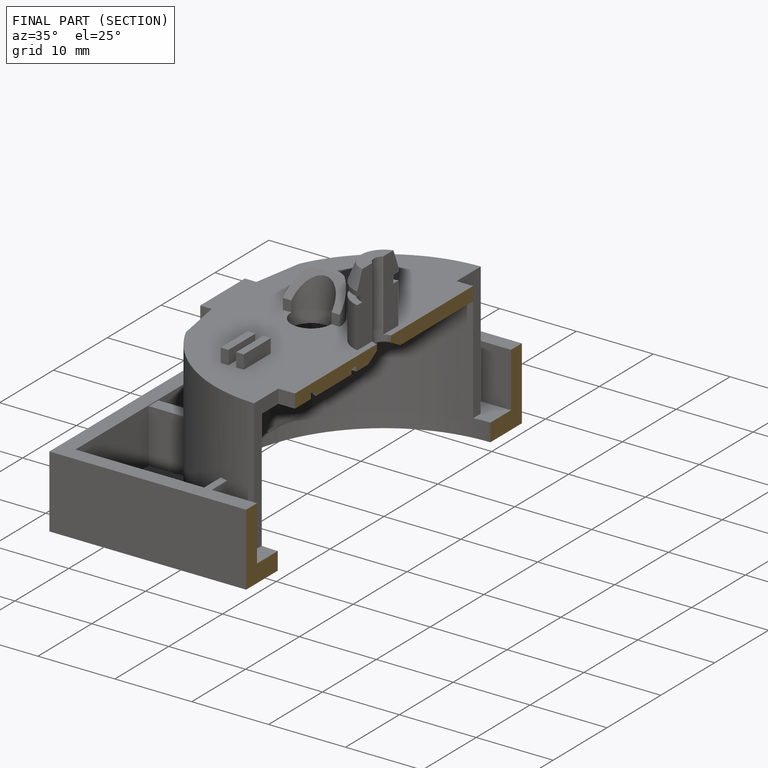
[diagram: finished part — half-section view (interior)]
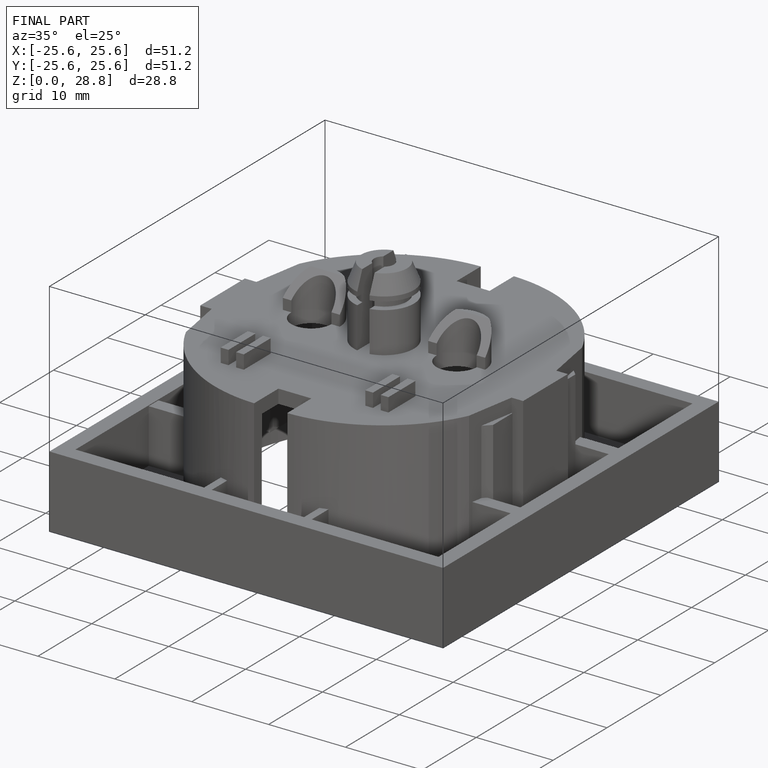
[diagram: finished part — iso view with bounding-box wireframe]
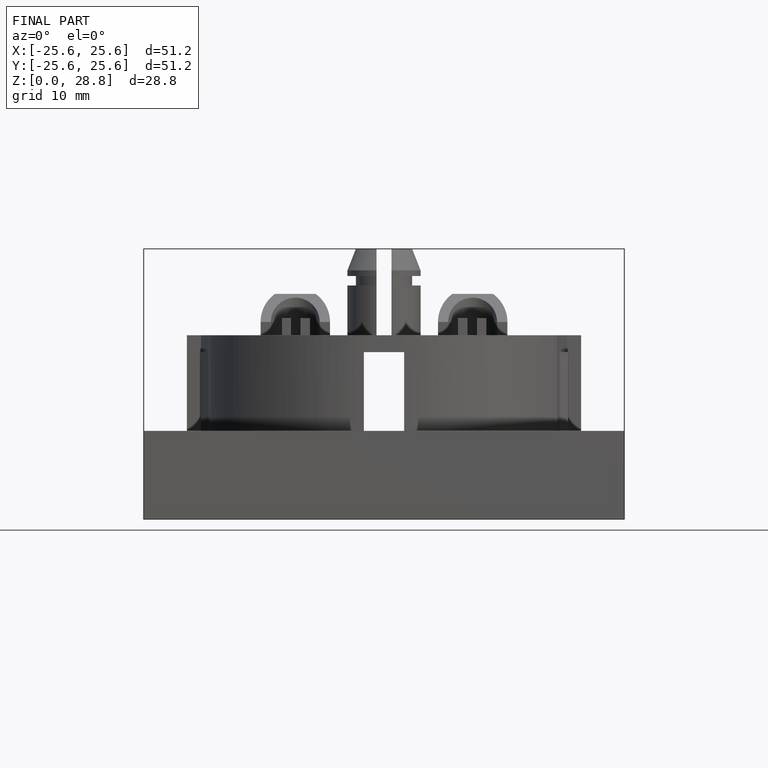
[diagram: finished part — front view with bounding-box wireframe]
